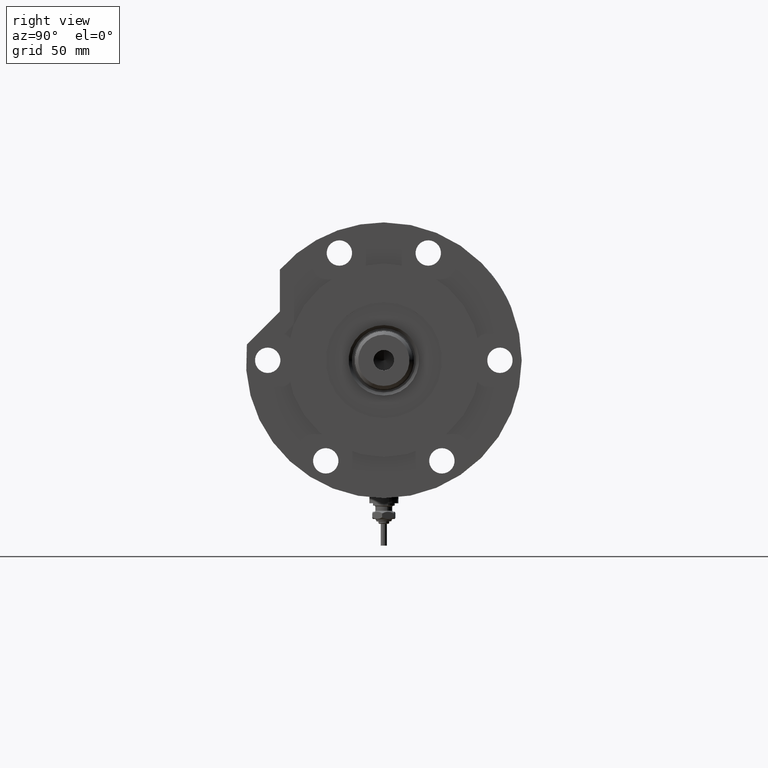
[diagram: clean part render]
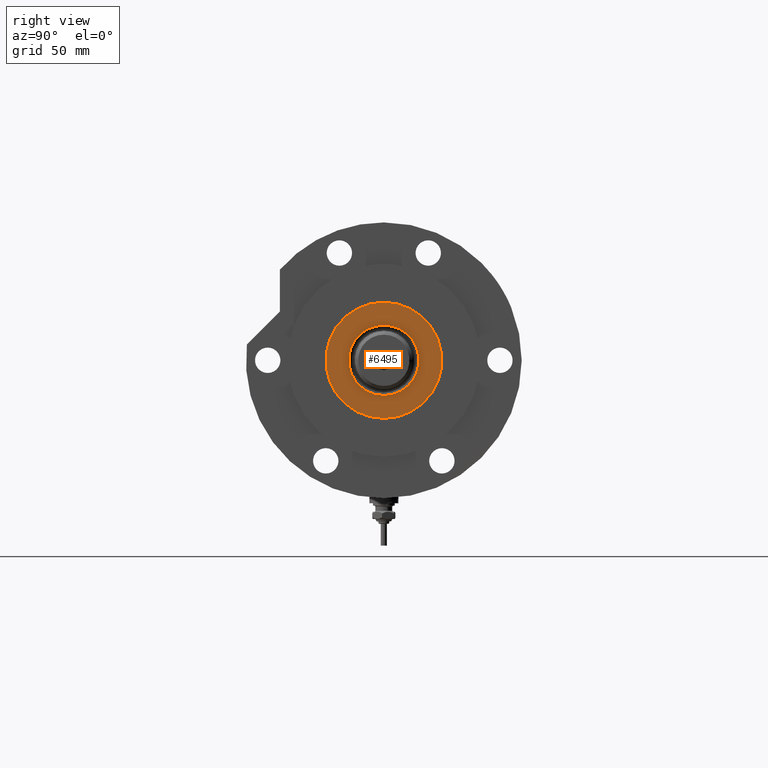
[diagram: same view with one face highlighted and labeled with its STEP entity id]
A machine part, right view. The second image highlights one B-rep face of the part: STEP entity #6495.
In plain terms, the highlighted planar face has unit normal (1, 0, -0).
Its self-contained STEP definition (entity closure, byte-faithful):
#32 = EDGE_CURVE ( 'NONE', #4250, #3071, #5002, .T. ) ;
#66 = AXIS2_PLACEMENT_3D ( 'NONE', #3956, #7440, #6436 ) ;
#261 = EDGE_CURVE ( 'NONE', #6224, #3726, #2676, .T. ) ;
#513 = CARTESIAN_POINT ( 'NONE',  ( 0.000000000000000000, 0.000000000000000000, 41.00000000000000000 ) ) ;
#543 = CARTESIAN_POINT ( 'NONE',  ( 0.000000000000000000, 0.000000000000000000, 41.00000000000000000 ) ) ;
#685 = EDGE_CURVE ( 'NONE', #3071, #4250, #3549, .T. ) ;
#947 = CARTESIAN_POINT ( 'NONE',  ( 0.000000000000000000, 0.000000000000000000, 41.00000000000000000 ) ) ;
#1161 = EDGE_CURVE ( 'NONE', #3726, #6224, #3660, .T. ) ;
#1192 = DIRECTION ( 'NONE',  ( 1.000000000000000000, 0.000000000000000000, 0.000000000000000000 ) ) ;
#1292 = CARTESIAN_POINT ( 'NONE',  ( 24.00000000000000355, 2.939152317953648289E-15, 41.00000000000000000 ) ) ;
#1541 = ORIENTED_EDGE ( 'NONE', *, *, #32, .T. ) ;
#1619 = ORIENTED_EDGE ( 'NONE', *, *, #261, .T. ) ;
#2676 = CIRCLE ( 'NONE', #3158, 24.00000000000000355 ) ;
#2799 = CARTESIAN_POINT ( 'NONE',  ( -14.54999999999997939, 1.781861092759396721E-15, 41.00000000000000000 ) ) ;
#3071 = VERTEX_POINT ( 'NONE', #2799 ) ;
#3158 = AXIS2_PLACEMENT_3D ( 'NONE', #3809, #3277, #6805 ) ;
#3277 = DIRECTION ( 'NONE',  ( 0.000000000000000000, 0.000000000000000000, 1.000000000000000000 ) ) ;
#3320 = FACE_OUTER_BOUND ( 'NONE', #6184, .T. ) ;
#3549 = CIRCLE ( 'NONE', #5875, 14.54999999999997939 ) ;
#3651 = AXIS2_PLACEMENT_3D ( 'NONE', #543, #5765, #7551 ) ;
#3660 = CIRCLE ( 'NONE', #66, 24.00000000000000355 ) ;
#3726 = VERTEX_POINT ( 'NONE', #1292 ) ;
#3809 = CARTESIAN_POINT ( 'NONE',  ( 0.000000000000000000, 0.000000000000000000, 41.00000000000000000 ) ) ;
#3832 = AXIS2_PLACEMENT_3D ( 'NONE', #947, #5589, #5626 ) ;
#3925 = CARTESIAN_POINT ( 'NONE',  ( -24.00000000000000355, 0.000000000000000000, 41.00000000000000000 ) ) ;
#3956 = CARTESIAN_POINT ( 'NONE',  ( 0.000000000000000000, 0.000000000000000000, 41.00000000000000000 ) ) ;
#4250 = VERTEX_POINT ( 'NONE', #6207 ) ;
#5002 = CIRCLE ( 'NONE', #3651, 14.54999999999997939 ) ;
#5087 = FACE_BOUND ( 'NONE', #6996, .T. ) ;
#5237 = ORIENTED_EDGE ( 'NONE', *, *, #685, .T. ) ;
#5589 = DIRECTION ( 'NONE',  ( 0.000000000000000000, 0.000000000000000000, 1.000000000000000000 ) ) ;
#5626 = DIRECTION ( 'NONE',  ( 1.000000000000000000, 0.000000000000000000, -0.000000000000000000 ) ) ;
#5671 = PLANE ( 'NONE',  #3832 ) ;
#5765 = DIRECTION ( 'NONE',  ( -0.000000000000000000, -0.000000000000000000, -1.000000000000000000 ) ) ;
#5814 = DIRECTION ( 'NONE',  ( -0.000000000000000000, -0.000000000000000000, -1.000000000000000000 ) ) ;
#5875 = AXIS2_PLACEMENT_3D ( 'NONE', #513, #5814, #1192 ) ;
#6184 = EDGE_LOOP ( 'NONE', ( #1619, #7232 ) ) ;
#6207 = CARTESIAN_POINT ( 'NONE',  ( 14.54999999999997939, 0.000000000000000000, 41.00000000000000000 ) ) ;
#6224 = VERTEX_POINT ( 'NONE', #3925 ) ;
#6436 = DIRECTION ( 'NONE',  ( 1.000000000000000000, 0.000000000000000000, 0.000000000000000000 ) ) ;
#6495 = ADVANCED_FACE ( 'NONE', ( #5087, #3320 ), #5671, .T. ) ;
#6805 = DIRECTION ( 'NONE',  ( 1.000000000000000000, 0.000000000000000000, 0.000000000000000000 ) ) ;
#6996 = EDGE_LOOP ( 'NONE', ( #1541, #5237 ) ) ;
#7232 = ORIENTED_EDGE ( 'NONE', *, *, #1161, .T. ) ;
#7440 = DIRECTION ( 'NONE',  ( 0.000000000000000000, 0.000000000000000000, 1.000000000000000000 ) ) ;
#7551 = DIRECTION ( 'NONE',  ( 1.000000000000000000, 0.000000000000000000, 0.000000000000000000 ) ) ;